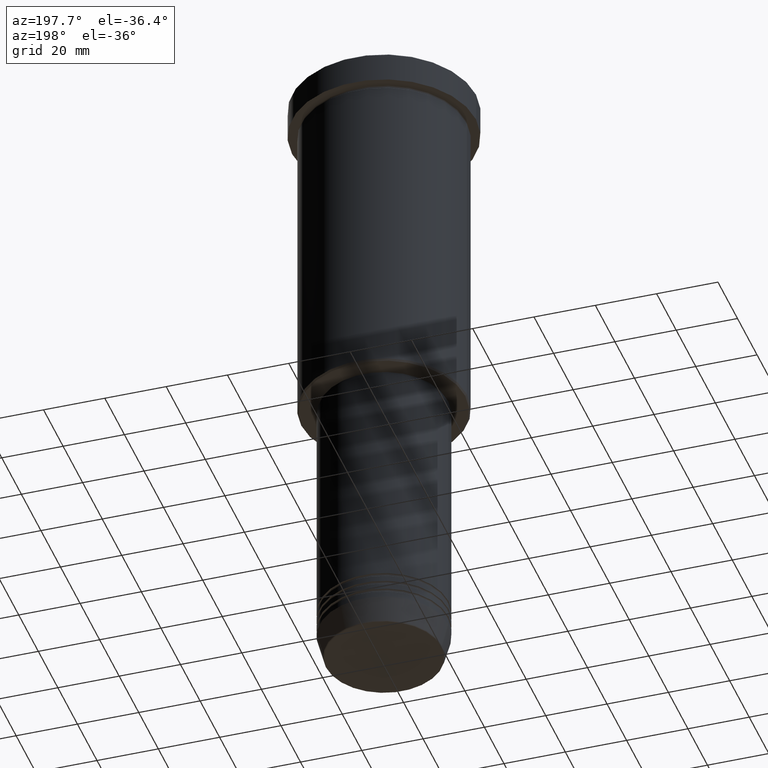
[diagram: clean part render]
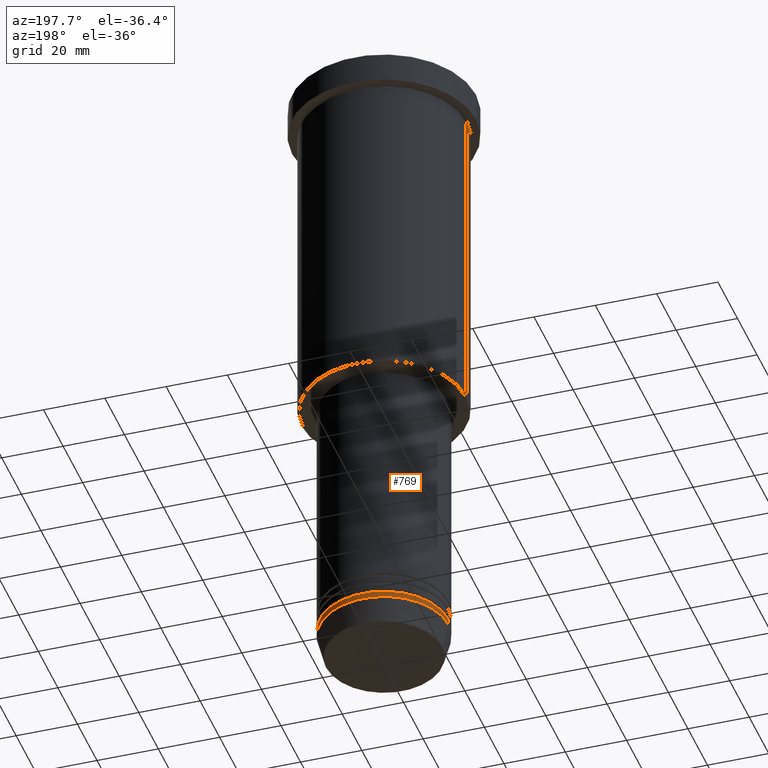
[diagram: same view with one face highlighted and labeled with its STEP entity id]
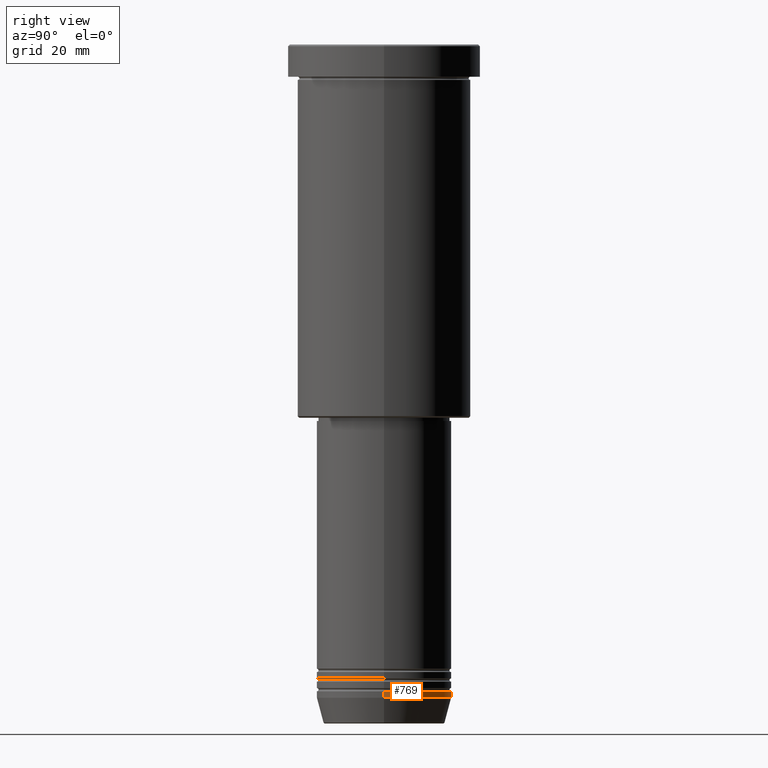
[diagram: same view with one face highlighted and labeled with its STEP entity id]
A machine part, auxiliary view. The second image highlights one B-rep face of the part: STEP entity #769.
A second angle (right view) of the same face is appended — the face is thin or edge-on in the first view.
In plain terms, the highlighted cylindrical surface (partial cylindrical patch) has radius 21 mm, axis along (-0, -0, 1).
Its self-contained STEP definition (entity closure, byte-faithful):
#6 = VECTOR ( 'NONE', #297, 1000.000000000000000 ) ;
#17 = LINE ( 'NONE', #748, #6 ) ;
#36 = DIRECTION ( 'NONE',  ( -0.000000000000000000, -0.000000000000000000, 1.000000000000000000 ) ) ;
#91 = ORIENTED_EDGE ( 'NONE', *, *, #935, .T. ) ;
#191 = CIRCLE ( 'NONE', #868, 21.00000000000000000 ) ;
#206 = VERTEX_POINT ( 'NONE', #423 ) ;
#224 = CARTESIAN_POINT ( 'NONE',  ( 21.00000000000000000, 0.000000000000000000, -201.0000000000000000 ) ) ;
#236 = CARTESIAN_POINT ( 'NONE',  ( 21.00000000000000000, 0.000000000000000000, -203.0000000000000000 ) ) ;
#279 = DIRECTION ( 'NONE',  ( -0.000000000000000000, -0.000000000000000000, 1.000000000000000000 ) ) ;
#297 = DIRECTION ( 'NONE',  ( -0.000000000000000000, -0.000000000000000000, 1.000000000000000000 ) ) ;
#314 = LINE ( 'NONE', #486, #469 ) ;
#320 = DIRECTION ( 'NONE',  ( -0.000000000000000000, -0.000000000000000000, 1.000000000000000000 ) ) ;
#326 = ORIENTED_EDGE ( 'NONE', *, *, #829, .T. ) ;
#352 = DIRECTION ( 'NONE',  ( 1.000000000000000000, 0.000000000000000000, 0.000000000000000000 ) ) ;
#380 = VERTEX_POINT ( 'NONE', #236 ) ;
#423 = CARTESIAN_POINT ( 'NONE',  ( -21.00000000000000000, 2.571758278209441661E-15, -203.0000000000000000 ) ) ;
#459 = CARTESIAN_POINT ( 'NONE',  ( 0.000000000000000000, 0.000000000000000000, -203.0000000000000000 ) ) ;
#469 = VECTOR ( 'NONE', #36, 1000.000000000000000 ) ;
#486 = CARTESIAN_POINT ( 'NONE',  ( -21.00000000000000000, 2.571758278209441661E-15, 0.000000000000000000 ) ) ;
#488 = DIRECTION ( 'NONE',  ( -0.000000000000000000, -0.000000000000000000, 1.000000000000000000 ) ) ;
#493 = ORIENTED_EDGE ( 'NONE', *, *, #911, .F. ) ;
#509 = DIRECTION ( 'NONE',  ( 1.000000000000000000, 0.000000000000000000, 0.000000000000000000 ) ) ;
#641 = CARTESIAN_POINT ( 'NONE',  ( -21.00000000000000000, 2.571758278209441661E-15, -201.0000000000000000 ) ) ;
#655 = VERTEX_POINT ( 'NONE', #641 ) ;
#734 = CARTESIAN_POINT ( 'NONE',  ( 0.000000000000000000, 0.000000000000000000, -201.0000000000000000 ) ) ;
#736 = EDGE_CURVE ( 'NONE', #988, #655, #191, .T. ) ;
#748 = CARTESIAN_POINT ( 'NONE',  ( 21.00000000000000000, 0.000000000000000000, 0.000000000000000000 ) ) ;
#762 = CYLINDRICAL_SURFACE ( 'NONE', #817, 21.00000000000000000 ) ;
#769 = ADVANCED_FACE ( 'NONE', ( #948 ), #762, .T. ) ;
#817 = AXIS2_PLACEMENT_3D ( 'NONE', #1059, #320, #509 ) ;
#829 = EDGE_CURVE ( 'NONE', #206, #655, #314, .T. ) ;
#846 = DIRECTION ( 'NONE',  ( 1.000000000000000000, 0.000000000000000000, 0.000000000000000000 ) ) ;
#868 = AXIS2_PLACEMENT_3D ( 'NONE', #734, #279, #352 ) ;
#911 = EDGE_CURVE ( 'NONE', #380, #988, #17, .T. ) ;
#935 = EDGE_CURVE ( 'NONE', #380, #206, #1143, .T. ) ;
#948 = FACE_OUTER_BOUND ( 'NONE', #1100, .T. ) ;
#988 = VERTEX_POINT ( 'NONE', #224 ) ;
#997 = AXIS2_PLACEMENT_3D ( 'NONE', #459, #488, #846 ) ;
#1059 = CARTESIAN_POINT ( 'NONE',  ( 0.000000000000000000, 0.000000000000000000, 0.000000000000000000 ) ) ;
#1100 = EDGE_LOOP ( 'NONE', ( #91, #326, #1183, #493 ) ) ;
#1143 = CIRCLE ( 'NONE', #997, 21.00000000000000000 ) ;
#1183 = ORIENTED_EDGE ( 'NONE', *, *, #736, .F. ) ;